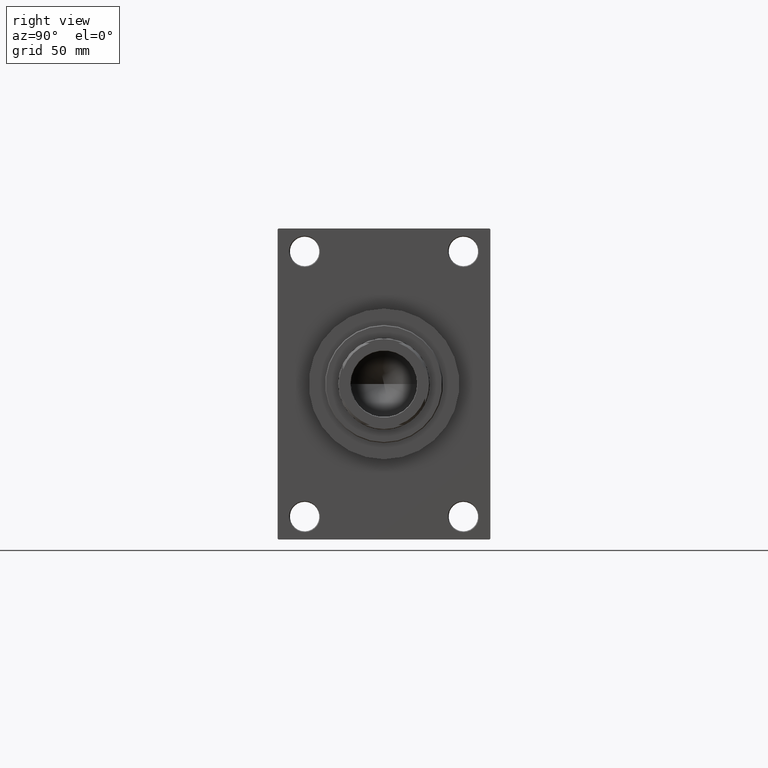
[diagram: clean part render]
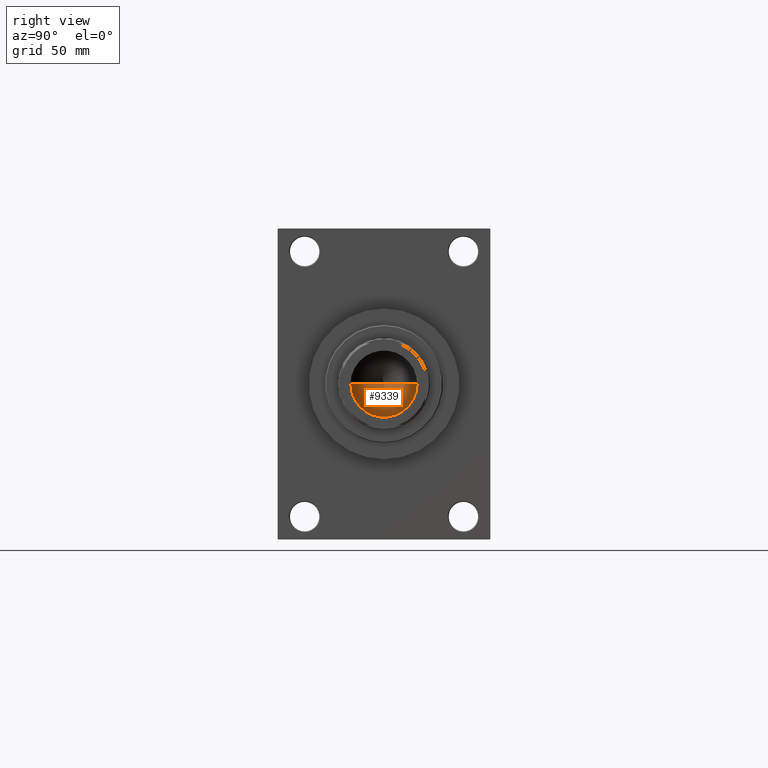
[diagram: same view with one face highlighted and labeled with its STEP entity id]
A machine part, right view. The second image highlights one B-rep face of the part: STEP entity #9339.
In plain terms, the highlighted conical surface has half-angle 59 deg.
Its self-contained STEP definition (entity closure, byte-faithful):
#204 = DIRECTION ( 'NONE',  ( -0.000000000000000000, -0.000000000000000000, 1.000000000000000000 ) ) ;
#1822 = ORIENTED_EDGE ( 'NONE', *, *, #19963, .T. ) ;
#2124 = DIRECTION ( 'NONE',  ( -0.8571673007021112234, 1.049727191138617340E-16, 0.5150380749100560429 ) ) ;
#3985 = CONICAL_SURFACE ( 'NONE', #10167, 20.24999999999998934, 1.029744258676652313 ) ;
#4613 = ORIENTED_EDGE ( 'NONE', *, *, #35902, .T. ) ;
#4757 = DIRECTION ( 'NONE',  ( 1.000000000000000000, 0.000000000000000000, 0.000000000000000000 ) ) ;
#5052 = DIRECTION ( 'NONE',  ( 1.000000000000000000, 0.000000000000000000, 0.000000000000000000 ) ) ;
#5995 = EDGE_CURVE ( 'NONE', #38410, #14586, #39074, .T. ) ;
#7898 = VERTEX_POINT ( 'NONE', #34300 ) ;
#9339 = ADVANCED_FACE ( 'NONE', ( #46342 ), #3985, .F. ) ;
#10167 = AXIS2_PLACEMENT_3D ( 'NONE', #12297, #27036, #5052 ) ;
#10179 = VECTOR ( 'NONE', #45753, 1000.000000000000000 ) ;
#11714 = VECTOR ( 'NONE', #2124, 1000.000000000000000 ) ;
#12297 = CARTESIAN_POINT ( 'NONE',  ( 0.000000000000000000, 0.000000000000000000, 257.0000000000000000 ) ) ;
#14586 = VERTEX_POINT ( 'NONE', #29898 ) ;
#14811 = CARTESIAN_POINT ( 'NONE',  ( -1.584115414415908206E-14, 0.000000000000000000, 244.8325724646918786 ) ) ;
#16058 = LINE ( 'NONE', #19924, #10179 ) ;
#19041 = AXIS2_PLACEMENT_3D ( 'NONE', #44861, #204, #4757 ) ;
#19924 = CARTESIAN_POINT ( 'NONE',  ( 20.24999999999998934, 0.000000000000000000, 257.0000000000000000 ) ) ;
#19963 = EDGE_CURVE ( 'NONE', #7898, #14586, #47587, .T. ) ;
#27036 = DIRECTION ( 'NONE',  ( -0.000000000000000000, -0.000000000000000000, 1.000000000000000000 ) ) ;
#29898 = CARTESIAN_POINT ( 'NONE',  ( -20.24999999999998934, 2.479909768273389117E-15, 257.0000000000000000 ) ) ;
#34300 = CARTESIAN_POINT ( 'NONE',  ( 20.24999999999998934, 0.000000000000000000, 257.0000000000000000 ) ) ;
#34634 = ORIENTED_EDGE ( 'NONE', *, *, #5995, .F. ) ;
#35902 = EDGE_CURVE ( 'NONE', #38410, #7898, #16058, .T. ) ;
#37148 = EDGE_LOOP ( 'NONE', ( #34634, #4613, #1822 ) ) ;
#38410 = VERTEX_POINT ( 'NONE', #14811 ) ;
#39074 = LINE ( 'NONE', #39571, #11714 ) ;
#39571 = CARTESIAN_POINT ( 'NONE',  ( -20.24999999999998934, 2.479909768273389117E-15, 257.0000000000000000 ) ) ;
#44861 = CARTESIAN_POINT ( 'NONE',  ( 0.000000000000000000, 0.000000000000000000, 257.0000000000000000 ) ) ;
#45753 = DIRECTION ( 'NONE',  ( 0.8571673007021112234, 0.000000000000000000, 0.5150380749100560429 ) ) ;
#46342 = FACE_OUTER_BOUND ( 'NONE', #37148, .T. ) ;
#47587 = CIRCLE ( 'NONE', #19041, 20.24999999999998934 ) ;